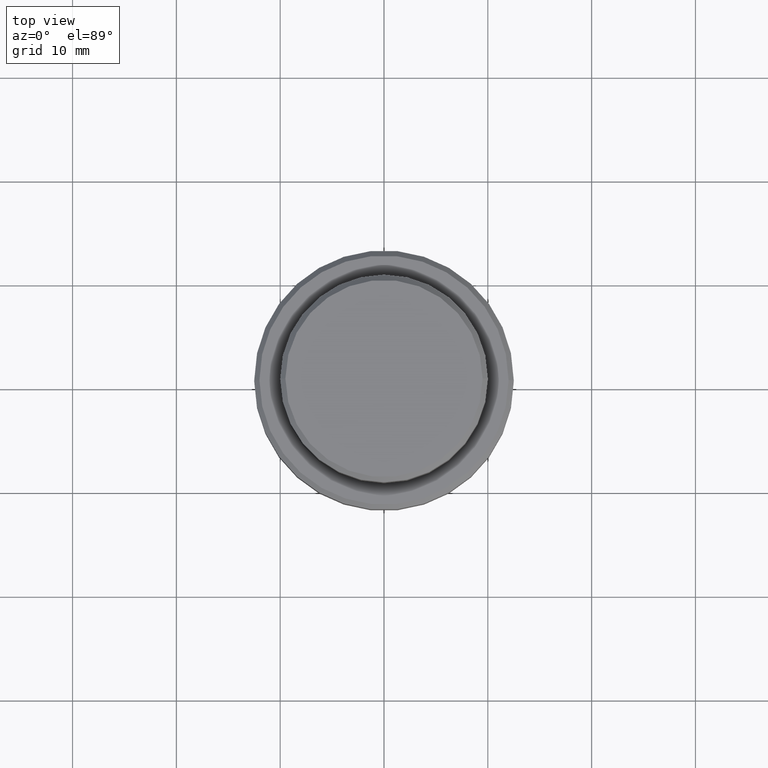
[diagram: clean part render]
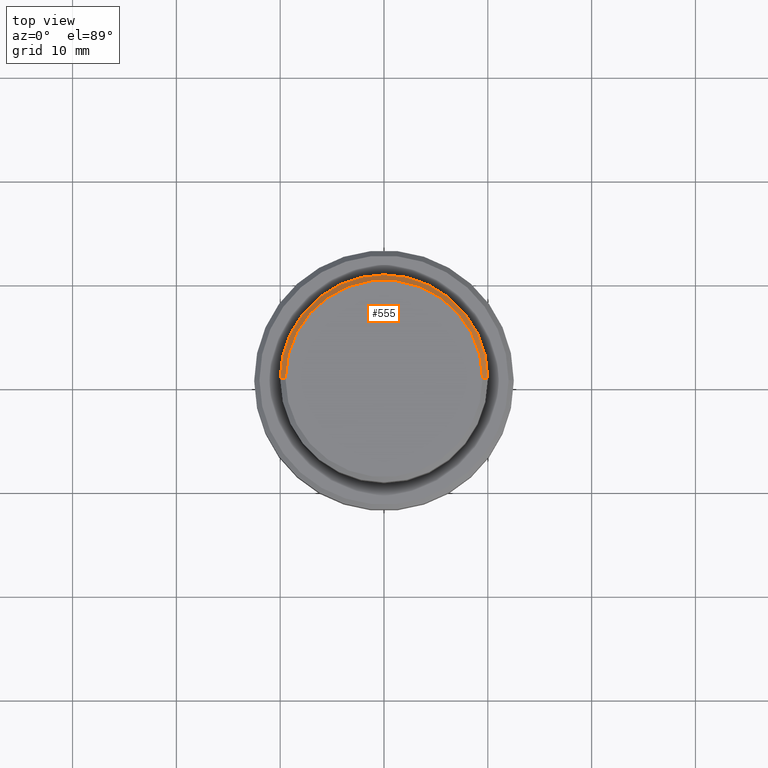
[diagram: same view with one face highlighted and labeled with its STEP entity id]
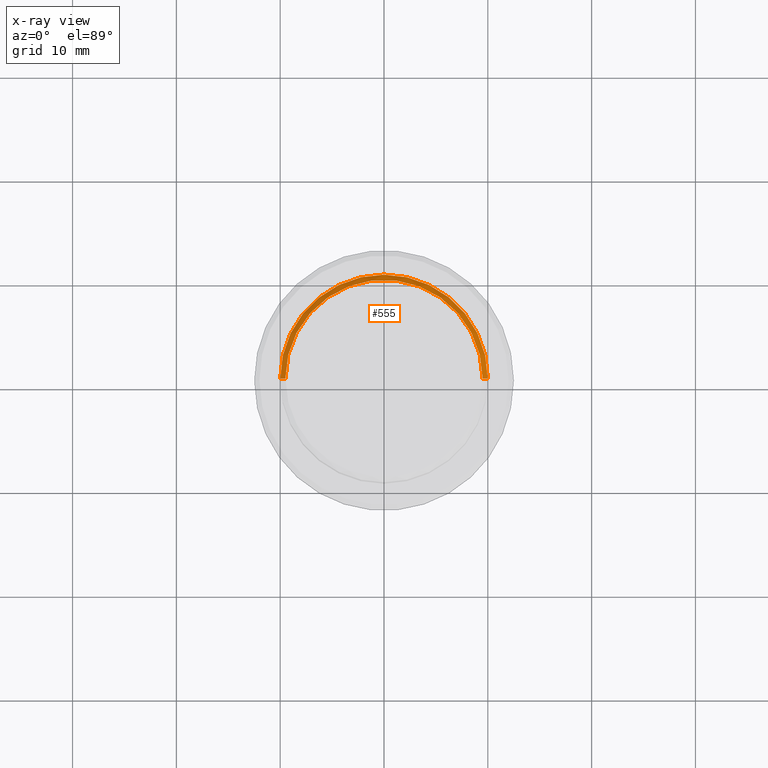
[diagram: x-ray of the same camera — body ghosted, the highlighted face saturated]
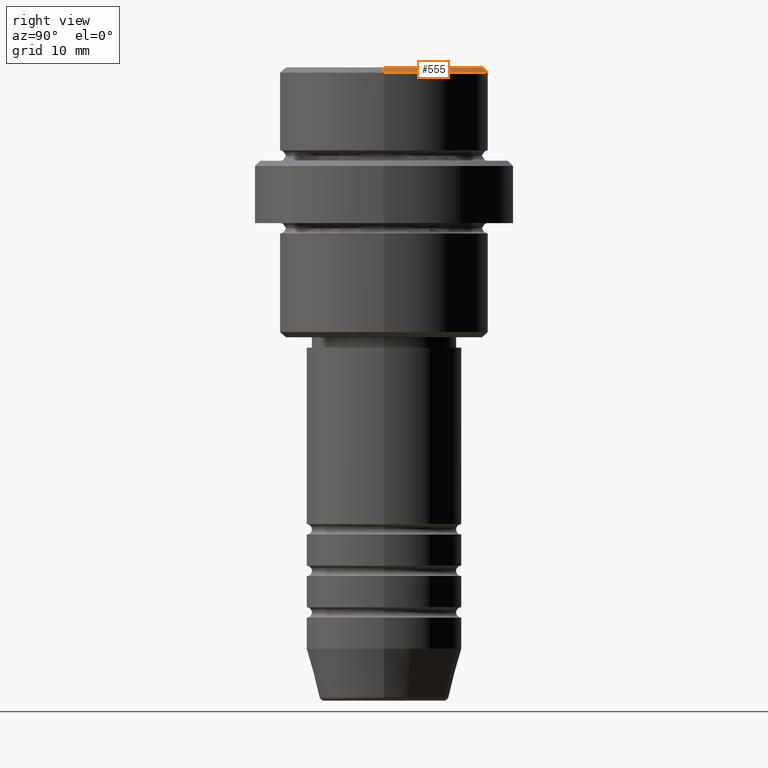
[diagram: same view with one face highlighted and labeled with its STEP entity id]
A machine part, top view. The second image highlights one B-rep face of the part: STEP entity #555.
The next image is the same camera in x-ray: the body ghosted, the highlighted face saturated — about 0% of this face is hidden behind the body in this view.
A second angle (right view) of the same face is appended — the face is thin or edge-on in the first view.
In plain terms, the highlighted conical surface has half-angle 45 deg.
Its self-contained STEP definition (entity closure, byte-faithful):
#2 = ORIENTED_EDGE ( 'NONE', *, *, #928, .F. ) ;
#33 = EDGE_CURVE ( 'NONE', #967, #1199, #1402, .T. ) ;
#64 = CARTESIAN_POINT ( 'NONE',  ( -9.499999999999987566, 0.000000000000000000, 0.000000000000000000 ) ) ;
#240 = CARTESIAN_POINT ( 'NONE',  ( 0.000000000000000000, 0.000000000000000000, 0.000000000000000000 ) ) ;
#340 = CARTESIAN_POINT ( 'NONE',  ( 9.999999999999998224, 0.000000000000000000, -0.5000000000000108802 ) ) ;
#369 = AXIS2_PLACEMENT_3D ( 'NONE', #471, #1226, #1368 ) ;
#371 = CIRCLE ( 'NONE', #905, 9.499999999999987566 ) ;
#386 = LINE ( 'NONE', #709, #1336 ) ;
#395 = VERTEX_POINT ( 'NONE', #64 ) ;
#469 = ORIENTED_EDGE ( 'NONE', *, *, #1312, .F. ) ;
#471 = CARTESIAN_POINT ( 'NONE',  ( 0.000000000000000000, 0.000000000000000000, -0.5000000000000108802 ) ) ;
#475 = CONICAL_SURFACE ( 'NONE', #833, 9.499999999999987566, 0.7853981633974482790 ) ;
#494 = CARTESIAN_POINT ( 'NONE',  ( 0.000000000000000000, 0.000000000000000000, 0.000000000000000000 ) ) ;
#555 = ADVANCED_FACE ( 'NONE', ( #981 ), #475, .T. ) ;
#610 = EDGE_LOOP ( 'NONE', ( #469, #729, #662, #2 ) ) ;
#613 = VERTEX_POINT ( 'NONE', #679 ) ;
#649 = DIRECTION ( 'NONE',  ( 0.000000000000000000, 0.000000000000000000, -1.000000000000000000 ) ) ;
#662 = ORIENTED_EDGE ( 'NONE', *, *, #955, .F. ) ;
#665 = DIRECTION ( 'NONE',  ( -1.000000000000000000, 0.000000000000000000, 0.000000000000000000 ) ) ;
#676 = VECTOR ( 'NONE', #1075, 1000.000000000000114 ) ;
#679 = CARTESIAN_POINT ( 'NONE',  ( -9.999999999999998224, 1.224646799147353059E-15, -0.5000000000000108802 ) ) ;
#709 = CARTESIAN_POINT ( 'NONE',  ( -9.499999999999987566, 0.000000000000000000, 0.000000000000000000 ) ) ;
#715 = DIRECTION ( 'NONE',  ( -0.000000000000000000, -0.000000000000000000, 1.000000000000000000 ) ) ;
#729 = ORIENTED_EDGE ( 'NONE', *, *, #33, .T. ) ;
#833 = AXIS2_PLACEMENT_3D ( 'NONE', #240, #649, #665 ) ;
#905 = AXIS2_PLACEMENT_3D ( 'NONE', #494, #715, #1160 ) ;
#928 = EDGE_CURVE ( 'NONE', #395, #613, #386, .T. ) ;
#955 = EDGE_CURVE ( 'NONE', #613, #1199, #1064, .T. ) ;
#967 = VERTEX_POINT ( 'NONE', #1275 ) ;
#981 = FACE_OUTER_BOUND ( 'NONE', #610, .T. ) ;
#1002 = DIRECTION ( 'NONE',  ( -0.7071067811865474617, 0.000000000000000000, -0.7071067811865474617 ) ) ;
#1064 = CIRCLE ( 'NONE', #369, 9.999999999999998224 ) ;
#1075 = DIRECTION ( 'NONE',  ( 0.7071067811865474617, 8.659560562354932858E-17, -0.7071067811865474617 ) ) ;
#1160 = DIRECTION ( 'NONE',  ( 1.000000000000000000, 0.000000000000000000, 0.000000000000000000 ) ) ;
#1199 = VERTEX_POINT ( 'NONE', #340 ) ;
#1226 = DIRECTION ( 'NONE',  ( 0.000000000000000000, 0.000000000000000000, -1.000000000000000000 ) ) ;
#1275 = CARTESIAN_POINT ( 'NONE',  ( 9.499999999999987566, 1.194030629168668681E-15, 0.000000000000000000 ) ) ;
#1312 = EDGE_CURVE ( 'NONE', #967, #395, #371, .T. ) ;
#1336 = VECTOR ( 'NONE', #1002, 1000.000000000000114 ) ;
#1368 = DIRECTION ( 'NONE',  ( 1.000000000000000000, 0.000000000000000000, 0.000000000000000000 ) ) ;
#1395 = CARTESIAN_POINT ( 'NONE',  ( 9.499999999999987566, 1.163414459189984105E-15, 0.000000000000000000 ) ) ;
#1402 = LINE ( 'NONE', #1395, #676 ) ;